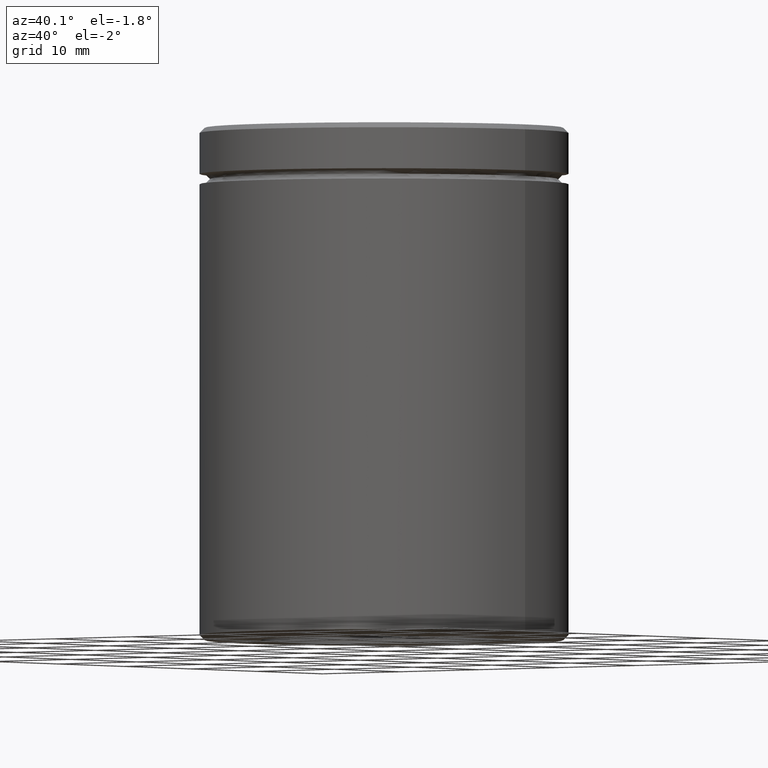
[diagram: clean part render]
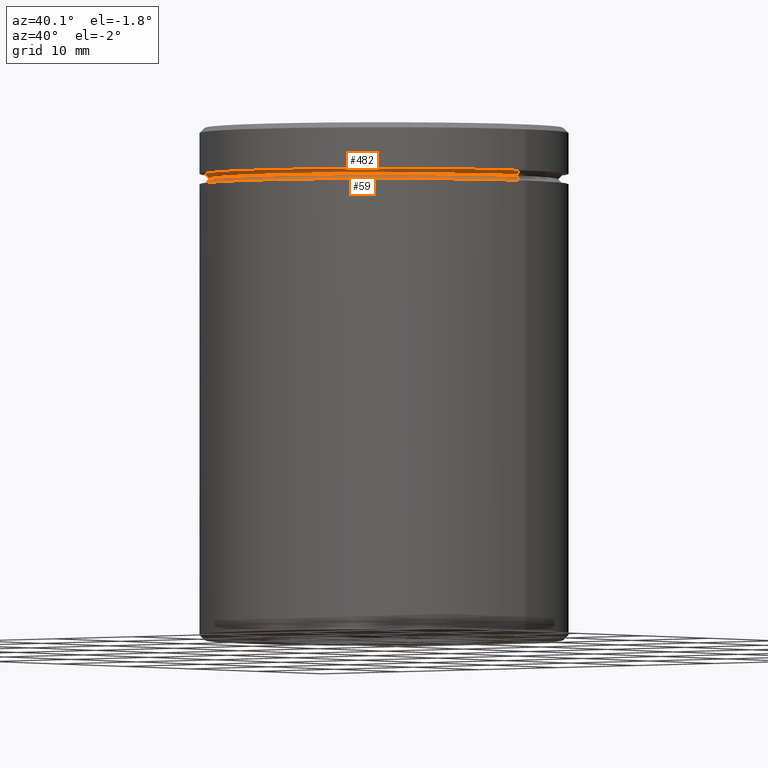
[diagram: same view with one multi-face feature highlighted, each face labeled with its STEP entity id]
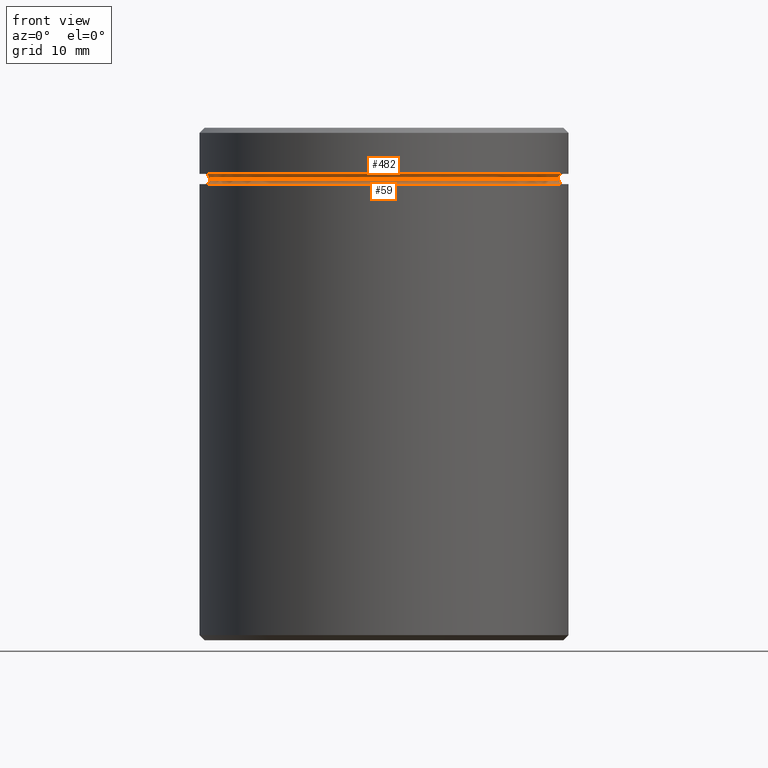
[diagram: same view with one multi-face feature highlighted, each face labeled with its STEP entity id]
A machine part, auxiliary view. The highlighted faces form ONE feature: a constant-radius fillet chain: 2 tangent blend faces with common blend radius 0.5 mm. The faces share edges in the B-rep.
A second angle (front view) of the same feature is appended — it is thin or edge-on in the first view.
Their STEP definitions:
[1] entity #59 (Torus):
#4 = ORIENTED_EDGE ( 'NONE', *, *, #179, .F. ) ;
#14 = DIRECTION ( 'NONE',  ( -0.000000000000000000, -0.000000000000000000, 1.000000000000000000 ) ) ;
#20 = CIRCLE ( 'NONE', #73, 16.99999999999999645 ) ;
#40 = FACE_OUTER_BOUND ( 'NONE', #289, .T. ) ;
#50 = AXIS2_PLACEMENT_3D ( 'NONE', #304, #476, #470 ) ;
#51 = CARTESIAN_POINT ( 'NONE',  ( 0.000000000000000000, 0.000000000000000000, -4.999999999999999112 ) ) ;
#56 = VERTEX_POINT ( 'NONE', #525 ) ;
#57 = DIRECTION ( 'NONE',  ( -0.000000000000000000, -0.000000000000000000, 1.000000000000000000 ) ) ;
#59 = ADVANCED_FACE ( 'NONE', ( #40 ), #319, .F. ) ;
#73 = AXIS2_PLACEMENT_3D ( 'NONE', #51, #57, #142 ) ;
#113 = VERTEX_POINT ( 'NONE', #157 ) ;
#116 = DIRECTION ( 'NONE',  ( 0.000000000000000000, -1.000000000000000000, 0.000000000000000000 ) ) ;
#123 = ORIENTED_EDGE ( 'NONE', *, *, #377, .F. ) ;
#142 = DIRECTION ( 'NONE',  ( 1.000000000000000000, 0.000000000000000000, 0.000000000000000000 ) ) ;
#150 = CARTESIAN_POINT ( 'NONE',  ( -17.49999999999999645, 2.143131898507867854E-15, -4.999999999999999112 ) ) ;
#157 = CARTESIAN_POINT ( 'NONE',  ( 16.99999999999999645, 0.000000000000000000, -4.999999999999999112 ) ) ;
#163 = CARTESIAN_POINT ( 'NONE',  ( 17.49999999999999645, 0.000000000000000000, -4.999999999999999112 ) ) ;
#168 = CIRCLE ( 'NONE', #488, 0.5000000000000004441 ) ;
#179 = EDGE_CURVE ( 'NONE', #113, #404, #343, .T. ) ;
#191 = DIRECTION ( 'NONE',  ( -1.000000000000000000, 1.224646799147349509E-16, 0.000000000000000000 ) ) ;
#192 = DIRECTION ( 'NONE',  ( 1.000000000000000000, 0.000000000000000000, 0.000000000000000000 ) ) ;
#223 = VERTEX_POINT ( 'NONE', #538 ) ;
#228 = ORIENTED_EDGE ( 'NONE', *, *, #302, .F. ) ;
#232 = CIRCLE ( 'NONE', #50, 17.49999999999999645 ) ;
#249 = ORIENTED_EDGE ( 'NONE', *, *, #323, .T. ) ;
#289 = EDGE_LOOP ( 'NONE', ( #228, #249, #123, #4 ) ) ;
#301 = AXIS2_PLACEMENT_3D ( 'NONE', #163, #116, #471 ) ;
#302 = EDGE_CURVE ( 'NONE', #56, #113, #20, .T. ) ;
#304 = CARTESIAN_POINT ( 'NONE',  ( 0.000000000000000000, 0.000000000000000000, -5.500000000000000000 ) ) ;
#319 = TOROIDAL_SURFACE ( 'NONE', #380, 17.49999999999999645, 0.5000000000000000000 ) ;
#323 = EDGE_CURVE ( 'NONE', #56, #223, #168, .T. ) ;
#343 = CIRCLE ( 'NONE', #301, 0.5000000000000004441 ) ;
#377 = EDGE_CURVE ( 'NONE', #404, #223, #232, .T. ) ;
#380 = AXIS2_PLACEMENT_3D ( 'NONE', #564, #14, #192 ) ;
#404 = VERTEX_POINT ( 'NONE', #518 ) ;
#470 = DIRECTION ( 'NONE',  ( 1.000000000000000000, 0.000000000000000000, 0.000000000000000000 ) ) ;
#471 = DIRECTION ( 'NONE',  ( 0.000000000000000000, 0.000000000000000000, -1.000000000000000000 ) ) ;
#476 = DIRECTION ( 'NONE',  ( 0.000000000000000000, 0.000000000000000000, -1.000000000000000000 ) ) ;
#488 = AXIS2_PLACEMENT_3D ( 'NONE', #150, #546, #191 ) ;
#518 = CARTESIAN_POINT ( 'NONE',  ( 17.49999999999999645, 0.000000000000000000, -5.500000000000000000 ) ) ;
#525 = CARTESIAN_POINT ( 'NONE',  ( -16.99999999999999645, 2.112515728529184067E-15, -4.999999999999999112 ) ) ;
#538 = CARTESIAN_POINT ( 'NONE',  ( -17.49999999999999645, 2.143131898507867854E-15, -5.500000000000000000 ) ) ;
#546 = DIRECTION ( 'NONE',  ( 1.224646799147353207E-16, 1.000000000000000000, 0.000000000000000000 ) ) ;
#564 = CARTESIAN_POINT ( 'NONE',  ( 0.000000000000000000, 0.000000000000000000, -4.999999999999999112 ) ) ;
[2] entity #482 (Torus):
#9 = EDGE_CURVE ( 'NONE', #113, #339, #252, .T. ) ;
#20 = CIRCLE ( 'NONE', #73, 16.99999999999999645 ) ;
#30 = AXIS2_PLACEMENT_3D ( 'NONE', #210, #384, #556 ) ;
#43 = TOROIDAL_SURFACE ( 'NONE', #30, 17.49999999999999645, 0.5000000000000000000 ) ;
#51 = CARTESIAN_POINT ( 'NONE',  ( 0.000000000000000000, 0.000000000000000000, -4.999999999999999112 ) ) ;
#53 = AXIS2_PLACEMENT_3D ( 'NONE', #496, #132, #67 ) ;
#56 = VERTEX_POINT ( 'NONE', #525 ) ;
#57 = DIRECTION ( 'NONE',  ( -0.000000000000000000, -0.000000000000000000, 1.000000000000000000 ) ) ;
#67 = DIRECTION ( 'NONE',  ( -1.000000000000000000, -1.224646799147349509E-16, 0.000000000000000000 ) ) ;
#68 = CARTESIAN_POINT ( 'NONE',  ( 0.000000000000000000, 0.000000000000000000, -4.500000000000000888 ) ) ;
#69 = ORIENTED_EDGE ( 'NONE', *, *, #352, .F. ) ;
#73 = AXIS2_PLACEMENT_3D ( 'NONE', #51, #57, #142 ) ;
#113 = VERTEX_POINT ( 'NONE', #157 ) ;
#132 = DIRECTION ( 'NONE',  ( -1.224646799147353207E-16, 1.000000000000000000, 0.000000000000000000 ) ) ;
#142 = DIRECTION ( 'NONE',  ( 1.000000000000000000, 0.000000000000000000, 0.000000000000000000 ) ) ;
#157 = CARTESIAN_POINT ( 'NONE',  ( 16.99999999999999645, 0.000000000000000000, -4.999999999999999112 ) ) ;
#176 = VERTEX_POINT ( 'NONE', #430 ) ;
#197 = CARTESIAN_POINT ( 'NONE',  ( -17.49999999999999645, 0.000000000000000000, -5.000000000000000888 ) ) ;
#210 = CARTESIAN_POINT ( 'NONE',  ( 0.000000000000000000, 0.000000000000000000, -5.000000000000000888 ) ) ;
#244 = EDGE_CURVE ( 'NONE', #56, #176, #406, .T. ) ;
#252 = CIRCLE ( 'NONE', #53, 0.5000000000000004441 ) ;
#292 = DIRECTION ( 'NONE',  ( -0.000000000000000000, -0.000000000000000000, 1.000000000000000000 ) ) ;
#299 = ORIENTED_EDGE ( 'NONE', *, *, #302, .T. ) ;
#302 = EDGE_CURVE ( 'NONE', #56, #113, #20, .T. ) ;
#335 = DIRECTION ( 'NONE',  ( -0.000000000000000000, -1.000000000000000000, -0.000000000000000000 ) ) ;
#337 = FACE_OUTER_BOUND ( 'NONE', #361, .T. ) ;
#338 = AXIS2_PLACEMENT_3D ( 'NONE', #68, #292, #464 ) ;
#339 = VERTEX_POINT ( 'NONE', #460 ) ;
#352 = EDGE_CURVE ( 'NONE', #176, #339, #459, .T. ) ;
#361 = EDGE_LOOP ( 'NONE', ( #299, #537, #69, #402 ) ) ;
#365 = DIRECTION ( 'NONE',  ( 0.000000000000000000, 0.000000000000000000, -1.000000000000000000 ) ) ;
#384 = DIRECTION ( 'NONE',  ( 0.000000000000000000, 0.000000000000000000, -1.000000000000000000 ) ) ;
#402 = ORIENTED_EDGE ( 'NONE', *, *, #244, .F. ) ;
#406 = CIRCLE ( 'NONE', #426, 0.5000000000000004441 ) ;
#426 = AXIS2_PLACEMENT_3D ( 'NONE', #197, #335, #365 ) ;
#430 = CARTESIAN_POINT ( 'NONE',  ( -17.49999999999999645, 0.000000000000000000, -4.500000000000000888 ) ) ;
#459 = CIRCLE ( 'NONE', #338, 17.49999999999999645 ) ;
#460 = CARTESIAN_POINT ( 'NONE',  ( 17.49999999999999645, 2.143131898507867854E-15, -4.500000000000000888 ) ) ;
#464 = DIRECTION ( 'NONE',  ( -1.000000000000000000, 0.000000000000000000, 0.000000000000000000 ) ) ;
#482 = ADVANCED_FACE ( 'NONE', ( #337 ), #43, .F. ) ;
#496 = CARTESIAN_POINT ( 'NONE',  ( 17.49999999999999645, 2.143131898507867854E-15, -5.000000000000000888 ) ) ;
#525 = CARTESIAN_POINT ( 'NONE',  ( -16.99999999999999645, 2.112515728529184067E-15, -4.999999999999999112 ) ) ;
#537 = ORIENTED_EDGE ( 'NONE', *, *, #9, .T. ) ;
#556 = DIRECTION ( 'NONE',  ( -1.000000000000000000, 0.000000000000000000, 0.000000000000000000 ) ) ;